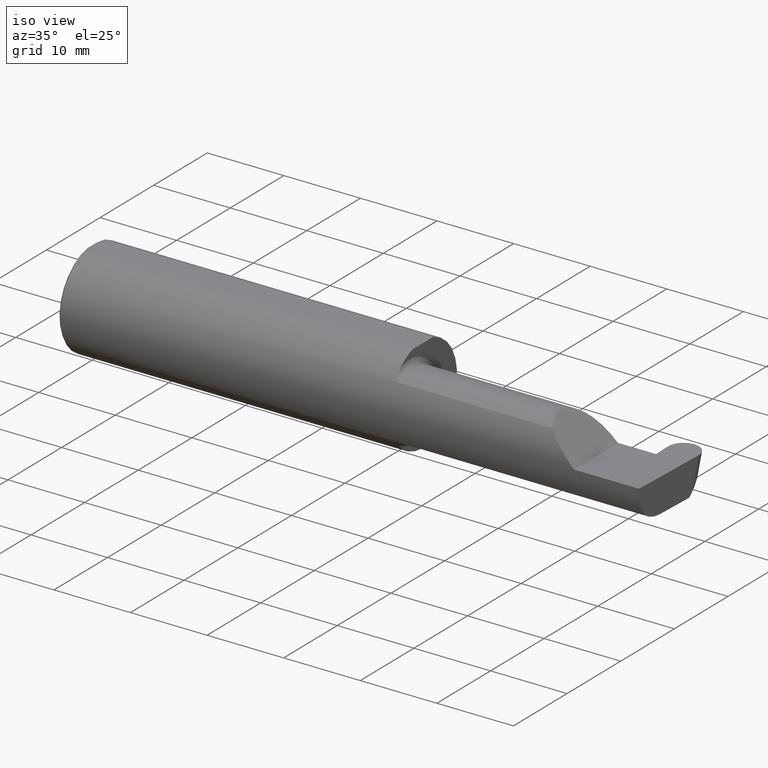
[diagram: clean part render]
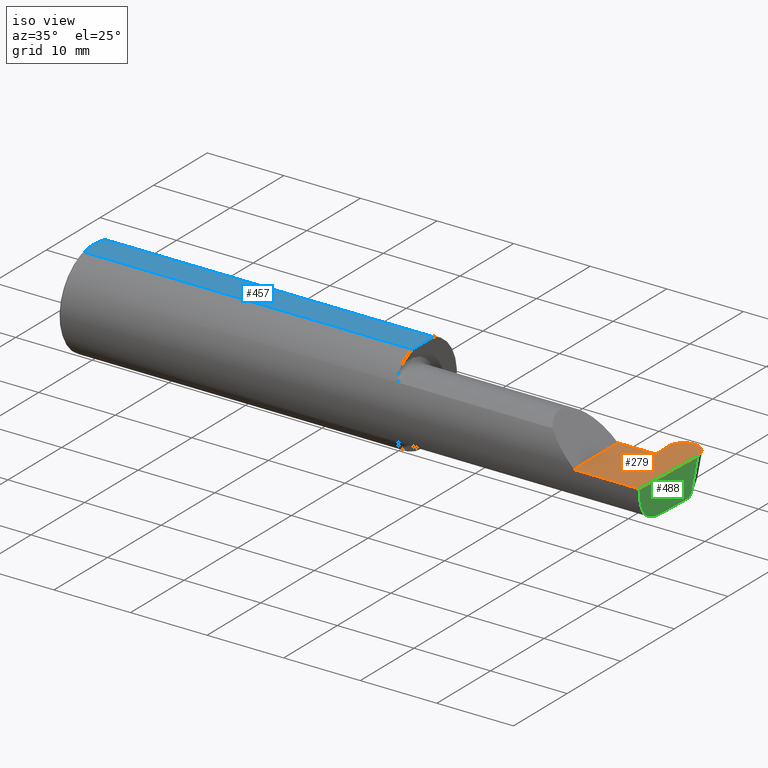
[diagram: same view with three faces highlighted in distinct colors, each labeled with its STEP entity id]
A machine part, iso view with three faces highlighted in distinct colors.
Their STEP definitions:

[orange] entity #279 — the highlighted planar face has unit normal (-0, 0, -1).
#6 = CARTESIAN_POINT ( 'NONE',  ( 2.842784520300991158, 0.1657741035941333874, 0.000000000000000000 ) ) ;
#11 = EDGE_CURVE ( 'NONE', #288, #451, #558, .T. ) ;
#13 = CARTESIAN_POINT ( 'NONE',  ( 2.650000000000000355, 0.07414999999999999369, 1.592040838891556877E-16 ) ) ;
#14 = EDGE_CURVE ( 'NONE', #132, #451, #323, .T. ) ;
#20 = EDGE_CURVE ( 'NONE', #319, #421, #61, .T. ) ;
#28 = CARTESIAN_POINT ( 'NONE',  ( 2.842863629214074095, 0.1635087207221616323, 0.000000000000000000 ) ) ;
#32 = LINE ( 'NONE', #535, #318 ) ;
#44 = CARTESIAN_POINT ( 'NONE',  ( -0.002039370078740339320, 0.2471499999999999808, 0.000000000000000000 ) ) ;
#61 = LINE ( 'NONE', #552, #157 ) ;
#68 = VERTEX_POINT ( 'NONE', #380 ) ;
#86 = CARTESIAN_POINT ( 'NONE',  ( 2.920795643315781120, 0.2471499999999999808, 0.000000000000000000 ) ) ;
#96 = CARTESIAN_POINT ( 'NONE',  ( 2.969012533631873119, 0.2471500000000000918, 2.705682905371335382E-18 ) ) ;
#97 = VECTOR ( 'NONE', #618, 39.37007874015748143 ) ;
#103 = DIRECTION ( 'NONE',  ( -1.000000000000000000, -0.000000000000000000, -0.000000000000000000 ) ) ;
#117 = LINE ( 'NONE', #659, #399 ) ;
#119 = CARTESIAN_POINT ( 'NONE',  ( 2.999952099699010333, 0.1657741035941333874, 0.000000000000000000 ) ) ;
#120 = VERTEX_POINT ( 'NONE', #704 ) ;
#132 = VERTEX_POINT ( 'NONE', #491 ) ;
#140 = CARTESIAN_POINT ( 'NONE',  ( 2.921940976684220370, 0.2471499999999999808, 0.000000000000000000 ) ) ;
#147 = VERTEX_POINT ( 'NONE', #557 ) ;
#154 = ORIENTED_EDGE ( 'NONE', *, *, #707, .F. ) ;
#157 = VECTOR ( 'NONE', #281, 39.37007874015748143 ) ;
#162 = ORIENTED_EDGE ( 'NONE', *, *, #14, .F. ) ;
#163 = DIRECTION ( 'NONE',  ( -0.03489949670249602176, 0.9993908270190959842, -0.000000000000000000 ) ) ;
#181 = EDGE_CURVE ( 'NONE', #147, #564, #32, .T. ) ;
#192 = VECTOR ( 'NONE', #381, 39.37007874015748854 ) ;
#265 = ORIENTED_EDGE ( 'NONE', *, *, #670, .T. ) ;
#279 = ADVANCED_FACE ( 'NONE', ( #506 ), #597, .F. ) ;
#280 = DIRECTION ( 'NONE',  ( -1.000000000000000000, 0.000000000000000000, 1.224646799147351975E-16 ) ) ;
#281 = DIRECTION ( 'NONE',  ( 1.000000000000000000, 4.482410818444318395E-17, 0.000000000000000000 ) ) ;
#288 = VERTEX_POINT ( 'NONE', #494 ) ;
#290 = DIRECTION ( 'NONE',  ( -1.224646799147351975E-16, 0.000000000000000000, -1.000000000000000000 ) ) ;
#295 = EDGE_LOOP ( 'NONE', ( #162, #265, #467, #297, #354, #374, #377, #154, #479 ) ) ;
#297 = ORIENTED_EDGE ( 'NONE', *, *, #466, .F. ) ;
#298 = VECTOR ( 'NONE', #163, 39.37007874015748143 ) ;
#318 = VECTOR ( 'NONE', #103, 39.37007874015748143 ) ;
#319 = VERTEX_POINT ( 'NONE', #13 ) ;
#323 = LINE ( 'NONE', #44, #472 ) ;
#324 = CARTESIAN_POINT ( 'NONE',  ( 2.650000000000000355, -0.2498499999999999610, 4.286263797015729199E-17 ) ) ;
#330 = AXIS2_PLACEMENT_3D ( 'NONE', #608, #290, #280 ) ;
#347 = EDGE_CURVE ( 'NONE', #564, #319, #117, .T. ) ;
#352 = CARTESIAN_POINT ( 'NONE',  ( 2.845984104502489398, 0.07414999999999977165, 0.000000000000000000 ) ) ;
#353 = EDGE_CURVE ( 'NONE', #120, #68, #551, .T. ) ;
#354 = ORIENTED_EDGE ( 'NONE', *, *, #20, .F. ) ;
#371 = CARTESIAN_POINT ( 'NONE',  ( 2.873724086368128372, 0.2471500000000001473, 1.543549517755541833E-17 ) ) ;
#374 = ORIENTED_EDGE ( 'NONE', *, *, #347, .F. ) ;
#377 = ORIENTED_EDGE ( 'NONE', *, *, #181, .F. ) ;
#380 = CARTESIAN_POINT ( 'NONE',  ( 2.842863629214074095, 0.1635087207221616323, 0.000000000000000000 ) ) ;
#381 = DIRECTION ( 'NONE',  ( -0.03489949670249561930, -0.9993908270190959842, 0.000000000000000000 ) ) ;
#399 = VECTOR ( 'NONE', #615, 39.37007874015748143 ) ;
#421 = VERTEX_POINT ( 'NONE', #456 ) ;
#451 = VERTEX_POINT ( 'NONE', #140 ) ;
#456 = CARTESIAN_POINT ( 'NONE',  ( 2.834942811380418259, 0.07414999999999977165, 0.000000000000000000 ) ) ;
#464 = LINE ( 'NONE', #352, #97 ) ;
#466 = EDGE_CURVE ( 'NONE', #421, #120, #464, .T. ) ;
#467 = ORIENTED_EDGE ( 'NONE', *, *, #353, .F. ) ;
#472 = VECTOR ( 'NONE', #625, 39.37007874015748143 ) ;
#475 = CARTESIAN_POINT ( 'NONE',  ( 2.999872990785927396, 0.1635087207221616878, 0.000000000000000000 ) ) ;
#479 = ORIENTED_EDGE ( 'NONE', *, *, #11, .T. ) ;
#491 = CARTESIAN_POINT ( 'NONE',  ( 2.920795643315781120, 0.2471499999999999808, 0.000000000000000000 ) ) ;
#494 = CARTESIAN_POINT ( 'NONE',  ( 2.999872990785927396, 0.1635087207221616878, 0.000000000000000000 ) ) ;
#506 = FACE_OUTER_BOUND ( 'NONE', #295, .T. ) ;
#525 = CARTESIAN_POINT ( 'NONE',  ( 2.841163163816639692, 0.2122036785419297300, 1.942305813555199541E-17 ) ) ;
#530 =( BOUNDED_CURVE ( )  B_SPLINE_CURVE ( 3, ( #86, #371, #525, #28 ),
 .UNSPECIFIED., .F., .F. ) 
 B_SPLINE_CURVE_WITH_KNOTS ( ( 4, 4 ),
 ( 3.045231736429742764, 4.645220385064936508 ),
 .UNSPECIFIED. ) 
 CURVE ( )  GEOMETRIC_REPRESENTATION_ITEM ( )  RATIONAL_B_SPLINE_CURVE ( ( 1.000000000000000000, 0.7978071872141905274, 0.7978071872141905274, 1.000000000000000000 ) ) 
 REPRESENTATION_ITEM ( '' )  );
#535 = CARTESIAN_POINT ( 'NONE',  ( 4.499279347985562423E-32, -0.2498499999999999610, 3.673940397442054938E-16 ) ) ;
#551 = LINE ( 'NONE', #6, #298 ) ;
#552 = CARTESIAN_POINT ( 'NONE',  ( 1.700000000000000178, 0.07414999999999995206, 1.592040838891556877E-16 ) ) ;
#553 = LINE ( 'NONE', #119, #192 ) ;
#557 = CARTESIAN_POINT ( 'NONE',  ( 2.985438186182187259, -0.2498499999999999888, 0.000000000000000000 ) ) ;
#558 =( BOUNDED_CURVE ( )  B_SPLINE_CURVE ( 3, ( #475, #695, #96, #699 ),
 .UNSPECIFIED., .F., .F. ) 
 B_SPLINE_CURVE_WITH_KNOTS ( ( 4, 4 ),
 ( 1.637964922114649946, 3.237953570749842136 ),
 .UNSPECIFIED. ) 
 CURVE ( )  GEOMETRIC_REPRESENTATION_ITEM ( )  RATIONAL_B_SPLINE_CURVE ( ( 1.000000000000000000, 0.7978071872141907495, 0.7978071872141907495, 1.000000000000000000 ) ) 
 REPRESENTATION_ITEM ( '' )  );
#564 = VERTEX_POINT ( 'NONE', #324 ) ;
#597 = PLANE ( 'NONE',  #330 ) ;
#608 = CARTESIAN_POINT ( 'NONE',  ( 3.000000000000000444, -0.2500000000000000555, 0.000000000000000000 ) ) ;
#615 = DIRECTION ( 'NONE',  ( -0.000000000000000000, 1.000000000000000000, -0.000000000000000000 ) ) ;
#618 = DIRECTION ( 'NONE',  ( 1.000000000000000000, -0.000000000000000000, -0.000000000000000000 ) ) ;
#625 = DIRECTION ( 'NONE',  ( 1.000000000000000000, -0.000000000000000000, -0.000000000000000000 ) ) ;
#659 = CARTESIAN_POINT ( 'NONE',  ( 2.650000000000000355, -0.2500000000000000555, 4.286263797015729199E-17 ) ) ;
#670 = EDGE_CURVE ( 'NONE', #132, #68, #530, .T. ) ;
#695 = CARTESIAN_POINT ( 'NONE',  ( 3.001573456183361799, 0.2122036785419296745, -1.281880052625236500E-18 ) ) ;
#699 = CARTESIAN_POINT ( 'NONE',  ( 2.921940976684220370, 0.2471499999999999808, 0.000000000000000000 ) ) ;
#704 = CARTESIAN_POINT ( 'NONE',  ( 2.845984104502489398, 0.07414999999999977165, 0.000000000000000000 ) ) ;
#707 = EDGE_CURVE ( 'NONE', #288, #147, #553, .T. ) ;

[blue] entity #457 — the highlighted planar face has unit normal (0, 0, 1).
#35 = CARTESIAN_POINT ( 'NONE',  ( 1.700000000000000178, 0.07650098038587520299, 0.2378499999999998671 ) ) ;
#45 = ORIENTED_EDGE ( 'NONE', *, *, #468, .T. ) ;
#60 = CARTESIAN_POINT ( 'NONE',  ( 0.009999999999999856226, 0.07650098038587520299, 0.2378499999999998671 ) ) ;
#62 = DIRECTION ( 'NONE',  ( -4.482410818444318395E-17, 1.000000000000000000, 0.000000000000000000 ) ) ;
#69 = CARTESIAN_POINT ( 'NONE',  ( 3.501298404146671484, 0.2498499999999998500, 0.2378499999999998671 ) ) ;
#102 = CARTESIAN_POINT ( 'NONE',  ( 0.000000000000000000, 0.2498499999999998500, 0.2378499999999998671 ) ) ;
#104 = CARTESIAN_POINT ( 'NONE',  ( 0.000000000000000000, -0.03090954545120560767, 0.2378499999999998671 ) ) ;
#106 = ORIENTED_EDGE ( 'NONE', *, *, #164, .F. ) ;
#110 = VECTOR ( 'NONE', #490, 39.37007874015748143 ) ;
#114 = B_SPLINE_CURVE_WITH_KNOTS ( 'NONE', 3,
 ( #424, #198, #373, #582 ),
 .UNSPECIFIED., .F., .F.,
 ( 4, 4 ),
 ( 0.01593449416844770414, 0.01712021724825603733 ),
 .UNSPECIFIED. ) ;
#121 = EDGE_CURVE ( 'NONE', #351, #554, #412, .T. ) ;
#133 = DIRECTION ( 'NONE',  ( 0.000000000000000000, 0.000000000000000000, 1.000000000000000000 ) ) ;
#164 = EDGE_CURVE ( 'NONE', #683, #312, #114, .T. ) ;
#180 = VECTOR ( 'NONE', #62, 39.37007874015748143 ) ;
#198 = CARTESIAN_POINT ( 'NONE',  ( 0.002005502345409059580, 0.04647171987093979412, 0.2378499999999998671 ) ) ;
#210 = CARTESIAN_POINT ( 'NONE',  ( 0.001983148254845701515, -0.04629825796642599717, 0.2378499999999998671 ) ) ;
#218 = CARTESIAN_POINT ( 'NONE',  ( 0.000000000000000000, -0.07650098038587520299, 0.2378499999999998671 ) ) ;
#228 = CARTESIAN_POINT ( 'NONE',  ( 0.009999999999999856226, -0.07650098038587520299, 0.2378499999999998671 ) ) ;
#239 = CARTESIAN_POINT ( 'NONE',  ( 0.000000000000000000, -0.03090954545120560767, 0.2378499999999998671 ) ) ;
#258 = DIRECTION ( 'NONE',  ( -0.000000000000000000, 1.000000000000000000, -0.000000000000000000 ) ) ;
#276 = VERTEX_POINT ( 'NONE', #283 ) ;
#277 = LINE ( 'NONE', #218, #110 ) ;
#283 = CARTESIAN_POINT ( 'NONE',  ( 1.700000000000000178, -0.07650098038587527238, 0.2378499999999998671 ) ) ;
#299 = DIRECTION ( 'NONE',  ( 1.000000000000000000, 0.000000000000000000, -0.000000000000000000 ) ) ;
#312 = VERTEX_POINT ( 'NONE', #60 ) ;
#329 = CARTESIAN_POINT ( 'NONE',  ( 0.009999999999999856226, -0.07650098038587520299, 0.2378499999999998671 ) ) ;
#334 = CARTESIAN_POINT ( 'NONE',  ( 0.000000000000000000, 0.03090954545120574992, 0.2378499999999998671 ) ) ;
#351 = VERTEX_POINT ( 'NONE', #228 ) ;
#359 = PLANE ( 'NONE',  #409 ) ;
#365 = ORIENTED_EDGE ( 'NONE', *, *, #652, .F. ) ;
#373 = CARTESIAN_POINT ( 'NONE',  ( 0.005466242398876384675, 0.06169385855649840017, 0.2378499999999998671 ) ) ;
#396 = EDGE_CURVE ( 'NONE', #351, #276, #277, .T. ) ;
#401 = ORIENTED_EDGE ( 'NONE', *, *, #121, .F. ) ;
#409 = AXIS2_PLACEMENT_3D ( 'NONE', #69, #133, #299 ) ;
#412 = B_SPLINE_CURVE_WITH_KNOTS ( 'NONE', 3,
 ( #329, #701, #210, #104 ),
 .UNSPECIFIED., .F., .F.,
 ( 4, 4 ),
 ( 0.01317593029100230795, 0.01435802289191462008 ),
 .UNSPECIFIED. ) ;
#424 = CARTESIAN_POINT ( 'NONE',  ( 0.000000000000000000, 0.03090954545120574992, 0.2378499999999998671 ) ) ;
#452 = CARTESIAN_POINT ( 'NONE',  ( 0.000000000000000000, 0.07650098038587520299, 0.2378499999999998671 ) ) ;
#457 = ADVANCED_FACE ( 'NONE', ( #460 ), #359, .T. ) ;
#460 = FACE_OUTER_BOUND ( 'NONE', #621, .T. ) ;
#462 = DIRECTION ( 'NONE',  ( -1.000000000000000000, -0.000000000000000000, -0.000000000000000000 ) ) ;
#468 = EDGE_CURVE ( 'NONE', #646, #312, #510, .T. ) ;
#476 = LINE ( 'NONE', #102, #668 ) ;
#490 = DIRECTION ( 'NONE',  ( 1.000000000000000000, 0.000000000000000000, 0.000000000000000000 ) ) ;
#510 = LINE ( 'NONE', #452, #548 ) ;
#548 = VECTOR ( 'NONE', #462, 39.37007874015748143 ) ;
#554 = VERTEX_POINT ( 'NONE', #239 ) ;
#582 = CARTESIAN_POINT ( 'NONE',  ( 0.009999999999999856226, 0.07650098038587520299, 0.2378499999999998671 ) ) ;
#621 = EDGE_LOOP ( 'NONE', ( #697, #643, #45, #106, #365, #401 ) ) ;
#643 = ORIENTED_EDGE ( 'NONE', *, *, #685, .T. ) ;
#646 = VERTEX_POINT ( 'NONE', #35 ) ;
#652 = EDGE_CURVE ( 'NONE', #554, #683, #476, .T. ) ;
#657 = LINE ( 'NONE', #665, #180 ) ;
#665 = CARTESIAN_POINT ( 'NONE',  ( 1.700000000000000178, 0.2498499999999997945, 0.2378499999999998671 ) ) ;
#668 = VECTOR ( 'NONE', #258, 39.37007874015748143 ) ;
#683 = VERTEX_POINT ( 'NONE', #334 ) ;
#685 = EDGE_CURVE ( 'NONE', #276, #646, #657, .T. ) ;
#697 = ORIENTED_EDGE ( 'NONE', *, *, #396, .T. ) ;
#701 = CARTESIAN_POINT ( 'NONE',  ( 0.005459900170181723050, -0.06167314502012866823, 0.2378499999999998671 ) ) ;

[green] entity #488 — the highlighted planar face has unit normal (-0.9992, 0.0349, 0.0175).
#19 = CARTESIAN_POINT ( 'NONE',  ( 2.987584882537838826, -0.1008500000000000091, -0.1750000000000000722 ) ) ;
#31 = CARTESIAN_POINT ( 'NONE',  ( 2.997444159268687347, 0.1562581541034807064, -0.1245661830446885138 ) ) ;
#82 = EDGE_CURVE ( 'NONE', #308, #288, #172, .T. ) ;
#83 = ORIENTED_EDGE ( 'NONE', *, *, #82, .T. ) ;
#85 = VECTOR ( 'NONE', #261, 39.37007874015748854 ) ;
#92 = CARTESIAN_POINT ( 'NONE',  ( 2.984481223124517690, -0.2080850024789288877, -0.1382955322609668858 ) ) ;
#98 = CARTESIAN_POINT ( 'NONE',  ( 2.984572483848591862, -0.2498499999999999610, -0.04956584089959716749 ) ) ;
#119 = CARTESIAN_POINT ( 'NONE',  ( 2.999952099699010333, 0.1657741035941333874, 0.000000000000000000 ) ) ;
#147 = VERTEX_POINT ( 'NONE', #557 ) ;
#152 = EDGE_CURVE ( 'NONE', #579, #436, #201, .T. ) ;
#172 = LINE ( 'NONE', #609, #191 ) ;
#189 = PLANE ( 'NONE',  #257 ) ;
#191 = VECTOR ( 'NONE', #594, 39.37007874015747433 ) ;
#192 = VECTOR ( 'NONE', #381, 39.37007874015748854 ) ;
#201 = LINE ( 'NONE', #531, #653 ) ;
#204 = ORIENTED_EDGE ( 'NONE', *, *, #707, .T. ) ;
#206 = VERTEX_POINT ( 'NONE', #478 ) ;
#207 =( BOUNDED_CURVE ( )  B_SPLINE_CURVE ( 3, ( #313, #254, #98, #528 ),
 .UNSPECIFIED., .F., .F. ) 
 B_SPLINE_CURVE_WITH_KNOTS ( ( 4, 4 ),
 ( 6.160376845738947615, 6.746954780470606039 ),
 .UNSPECIFIED. ) 
 CURVE ( )  GEOMETRIC_REPRESENTATION_ITEM ( )  RATIONAL_B_SPLINE_CURVE ( ( 1.000000000000000000, 0.9715321379117538569, 0.9715321379117538569, 1.000000000000000000 ) ) 
 REPRESENTATION_ITEM ( '' )  );
#240 = EDGE_LOOP ( 'NONE', ( #505, #83, #204, #425, #539, #344 ) ) ;
#254 = CARTESIAN_POINT ( 'NONE',  ( 2.984244149176539018, -0.2355204011147991328, -0.09701513151466779894 ) ) ;
#257 = AXIS2_PLACEMENT_3D ( 'NONE', #356, #689, #567 ) ;
#261 = DIRECTION ( 'NONE',  ( -0.03701744261649914797, -0.7066221440565398915, -0.7066221440565477740 ) ) ;
#288 = VERTEX_POINT ( 'NONE', #494 ) ;
#293 =( BOUNDED_CURVE ( )  B_SPLINE_CURVE ( 3, ( #92, #414, #376, #533 ),
 .UNSPECIFIED., .F., .F. ) 
 B_SPLINE_CURVE_WITH_KNOTS ( ( 4, 4 ),
 ( 0.4474640105399725343, 1.107026853503876973 ),
 .UNSPECIFIED. ) 
 CURVE ( )  GEOMETRIC_REPRESENTATION_ITEM ( )  RATIONAL_B_SPLINE_CURVE ( ( 1.000000000000000000, 0.9640754331822831702, 0.9640754331822831702, 1.000000000000000000 ) ) 
 REPRESENTATION_ITEM ( '' )  );
#308 = VERTEX_POINT ( 'NONE', #556 ) ;
#313 = CARTESIAN_POINT ( 'NONE',  ( 2.984481223124517690, -0.2080850024789288877, -0.1382955322609668858 ) ) ;
#321 = DIRECTION ( 'NONE',  ( -0.03489949670249561930, -0.9993908270190959842, 1.222058880457094148E-16 ) ) ;
#344 = ORIENTED_EDGE ( 'NONE', *, *, #152, .F. ) ;
#356 = CARTESIAN_POINT ( 'NONE',  ( 2.999952099699010333, 0.1657741035941333874, 0.000000000000000000 ) ) ;
#376 = CARTESIAN_POINT ( 'NONE',  ( 2.986216381845219203, -0.1400387324517230747, -0.1750000000000000999 ) ) ;
#381 = DIRECTION ( 'NONE',  ( -0.03489949670249561930, -0.9993908270190959842, 0.000000000000000000 ) ) ;
#414 = CARTESIAN_POINT ( 'NONE',  ( 2.985143277913549831, -0.1771157075472508113, -0.1623092683844332140 ) ) ;
#425 = ORIENTED_EDGE ( 'NONE', *, *, #574, .F. ) ;
#436 = VERTEX_POINT ( 'NONE', #19 ) ;
#478 = CARTESIAN_POINT ( 'NONE',  ( 2.984481223124517690, -0.2080850024789288877, -0.1382955322609668858 ) ) ;
#488 = ADVANCED_FACE ( 'NONE', ( #684 ), #189, .F. ) ;
#494 = CARTESIAN_POINT ( 'NONE',  ( 2.999872990785927396, 0.1635087207221616878, 0.000000000000000000 ) ) ;
#505 = ORIENTED_EDGE ( 'NONE', *, *, #619, .F. ) ;
#528 = CARTESIAN_POINT ( 'NONE',  ( 2.985438186182187259, -0.2498499999999999888, 0.000000000000000000 ) ) ;
#531 = CARTESIAN_POINT ( 'NONE',  ( 2.988089862307433453, -0.08638927141514793351, -0.1750000000000000722 ) ) ;
#533 = CARTESIAN_POINT ( 'NONE',  ( 2.987584882537838826, -0.1008500000000000091, -0.1750000000000000722 ) ) ;
#537 = LINE ( 'NONE', #31, #85 ) ;
#539 = ORIENTED_EDGE ( 'NONE', *, *, #642, .T. ) ;
#553 = LINE ( 'NONE', #119, #192 ) ;
#556 = CARTESIAN_POINT ( 'NONE',  ( 2.995574489715794542, 0.1205682248496117576, -0.1602561122985578790 ) ) ;
#557 = CARTESIAN_POINT ( 'NONE',  ( 2.985438186182187259, -0.2498499999999999888, 0.000000000000000000 ) ) ;
#567 = DIRECTION ( 'NONE',  ( -0.03489949670249561930, -0.9993908270190959842, 0.000000000000000000 ) ) ;
#574 = EDGE_CURVE ( 'NONE', #206, #147, #207, .T. ) ;
#579 = VERTEX_POINT ( 'NONE', #644 ) ;
#594 = DIRECTION ( 'NONE',  ( 0.02590004391968273034, 0.2587322210431824976, 0.9656017944882975268 ) ) ;
#609 = CARTESIAN_POINT ( 'NONE',  ( 2.999888224582237584, 0.1636609009256532465, 0.0005679442513367036422 ) ) ;
#619 = EDGE_CURVE ( 'NONE', #308, #579, #537, .T. ) ;
#642 = EDGE_CURVE ( 'NONE', #206, #436, #293, .T. ) ;
#644 = CARTESIAN_POINT ( 'NONE',  ( 2.994802109425249714, 0.1058243371481696615, -0.1750000000000001277 ) ) ;
#653 = VECTOR ( 'NONE', #321, 39.37007874015748143 ) ;
#684 = FACE_OUTER_BOUND ( 'NONE', #240, .T. ) ;
#689 = DIRECTION ( 'NONE',  ( -0.9992386149554828290, 0.03489418134010831979, 0.01745240643728358798 ) ) ;
#707 = EDGE_CURVE ( 'NONE', #288, #147, #553, .T. ) ;